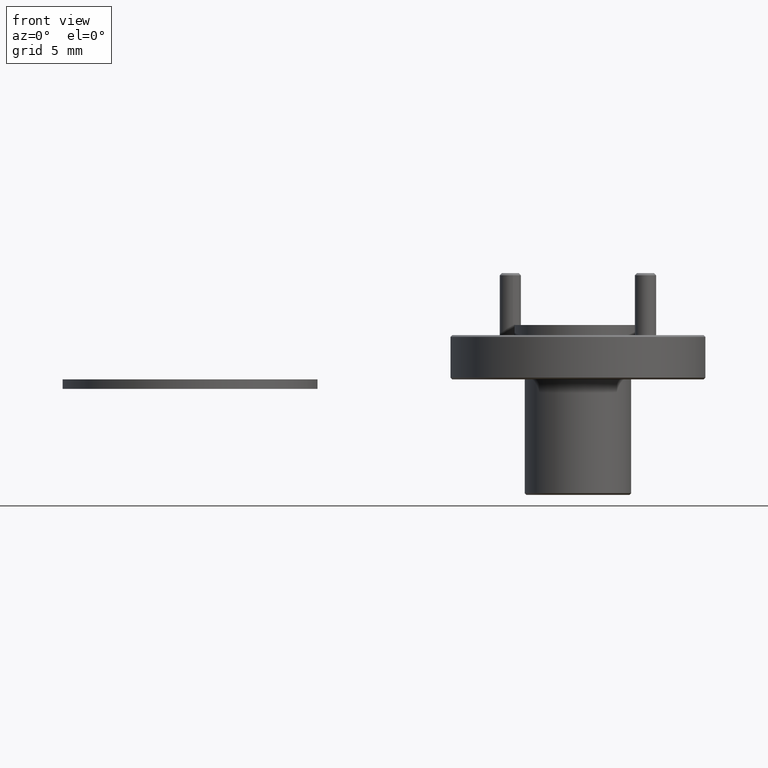
[diagram: clean part render]
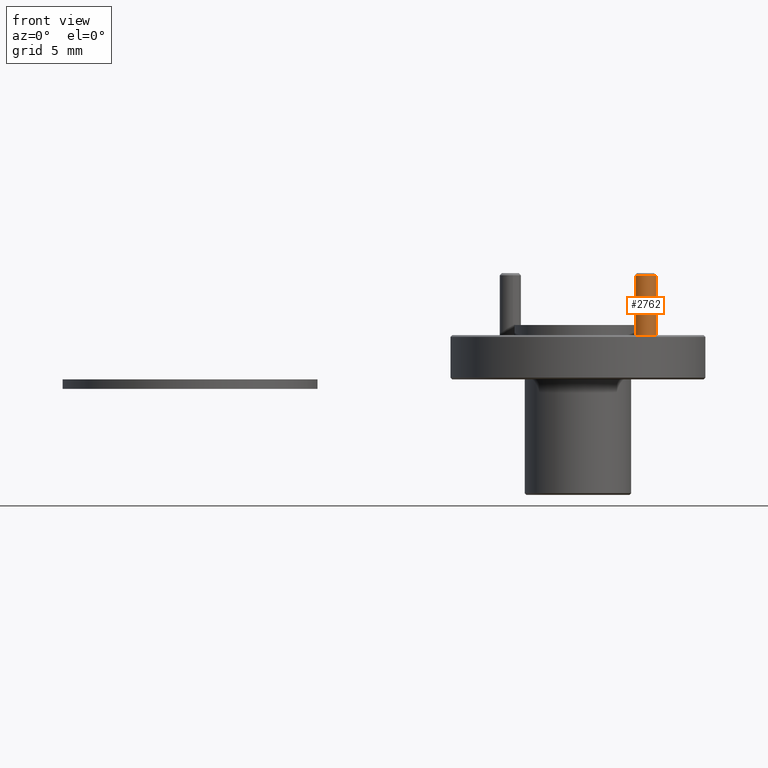
[diagram: same view with one face highlighted and labeled with its STEP entity id]
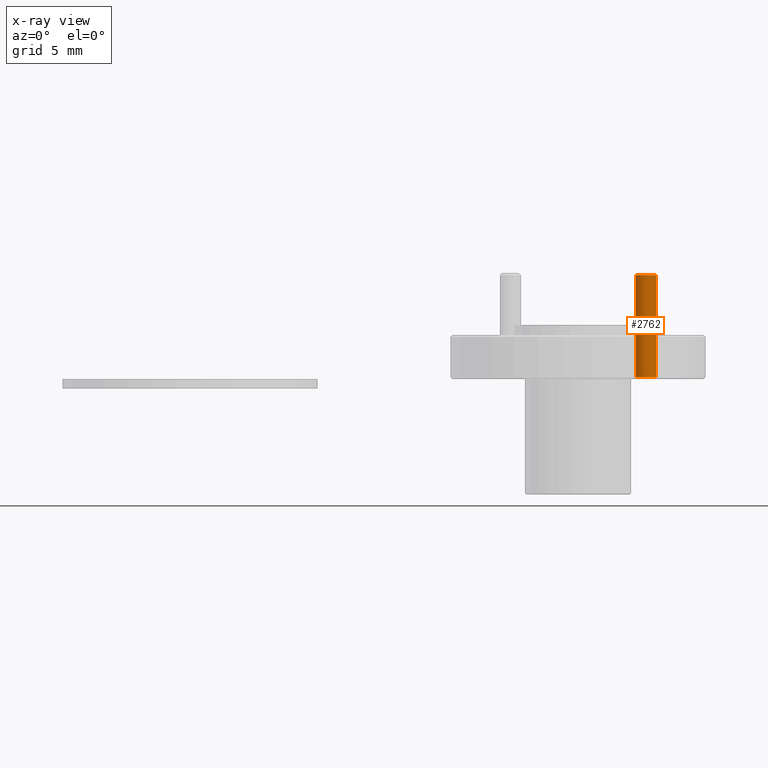
[diagram: x-ray of the same camera — body ghosted, the highlighted face saturated]
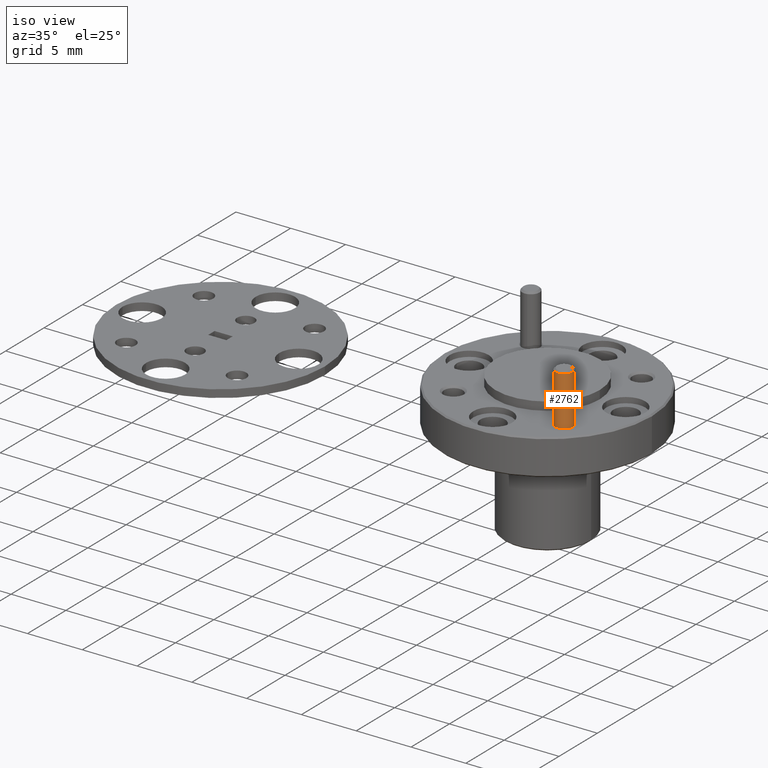
[diagram: same view with one face highlighted and labeled with its STEP entity id]
A machine part, front view. The second image highlights one B-rep face of the part: STEP entity #2762.
The next image is the same camera in x-ray: the body ghosted, the highlighted face saturated — about 0% of this face is hidden behind the body in this view.
A second angle (iso view) of the same face is appended — the face is thin or edge-on in the first view.
In plain terms, the highlighted cylindrical surface (edge-blend (fillet) strip) has radius 0.7938 mm, axis along (-0, -0, 1).
Its self-contained STEP definition (entity closure, byte-faithful):
#42 = DIRECTION ( 'NONE',  ( 3.334314145518470400E-030, 1.280441524869767400E-030, -1.000000000000000000 ) ) ;
#141 = ORIENTED_EDGE ( 'NONE', *, *, #2178, .T. ) ;
#164 = CYLINDRICAL_SURFACE ( 'NONE', #619, 0.03125000000000003500 ) ;
#306 = EDGE_CURVE ( 'NONE', #335, #1348, #384, .T. ) ;
#326 = VERTEX_POINT ( 'NONE', #2375 ) ;
#335 = VERTEX_POINT ( 'NONE', #2577 ) ;
#384 = LINE ( 'NONE', #2600, #1295 ) ;
#447 = EDGE_CURVE ( 'NONE', #2147, #326, #2046, .T. ) ;
#583 = CARTESIAN_POINT ( 'NONE',  ( -0.7259673814067050300, 1.009159099446192100, -0.4370940517253864600 ) ) ;
#619 = AXIS2_PLACEMENT_3D ( 'NONE', #1874, #2318, #2114 ) ;
#679 = ORIENTED_EDGE ( 'NONE', *, *, #447, .F. ) ;
#850 = CARTESIAN_POINT ( 'NONE',  ( -0.7259673814067054700, 1.009159099446191900, -0.4308440517253859200 ) ) ;
#1133 = EDGE_LOOP ( 'NONE', ( #679, #1626, #2389, #141 ) ) ;
#1216 = CARTESIAN_POINT ( 'NONE',  ( -0.6704528151205989600, 1.037871168860735800, -0.1308440517253863800 ) ) ;
#1295 = VECTOR ( 'NONE', #2842, 39.37007874015748100 ) ;
#1348 = VERTEX_POINT ( 'NONE', #1216 ) ;
#1389 = CARTESIAN_POINT ( 'NONE',  ( -0.6982100982636518800, 1.023515134153463800, -0.1308440517253863800 ) ) ;
#1466 = CARTESIAN_POINT ( 'NONE',  ( -0.6982100982636525500, 1.023515134153463400, -0.4308440517253859200 ) ) ;
#1577 = VECTOR ( 'NONE', #1698, 39.37007874015748100 ) ;
#1626 = ORIENTED_EDGE ( 'NONE', *, *, #2338, .T. ) ;
#1698 = DIRECTION ( 'NONE',  ( -3.334314145518470400E-030, -1.280441524869767400E-030, 1.000000000000000000 ) ) ;
#1741 = DIRECTION ( 'NONE',  ( 0.8882330605776904700, 0.4593931106327011100, 0.0000000000000000000 ) ) ;
#1830 = AXIS2_PLACEMENT_3D ( 'NONE', #1466, #1914, #1741 ) ;
#1855 = DIRECTION ( 'NONE',  ( 0.8882330605776904700, 0.4593931106327011100, 0.0000000000000000000 ) ) ;
#1874 = CARTESIAN_POINT ( 'NONE',  ( -0.6982100982636521000, 1.023515134153464100, -0.4370940517253864600 ) ) ;
#1914 = DIRECTION ( 'NONE',  ( -3.334314145518470400E-030, -1.280441524869767400E-030, 1.000000000000000000 ) ) ;
#2046 = LINE ( 'NONE', #583, #1577 ) ;
#2114 = DIRECTION ( 'NONE',  ( 0.8882330605776904700, 0.4593931106327011100, 0.0000000000000000000 ) ) ;
#2117 = CIRCLE ( 'NONE', #1830, 0.03125000000000003500 ) ;
#2147 = VERTEX_POINT ( 'NONE', #850 ) ;
#2178 = EDGE_CURVE ( 'NONE', #1348, #326, #2404, .T. ) ;
#2306 = AXIS2_PLACEMENT_3D ( 'NONE', #1389, #42, #1855 ) ;
#2318 = DIRECTION ( 'NONE',  ( -3.334314145518470400E-030, -1.280441524869767400E-030, 1.000000000000000000 ) ) ;
#2338 = EDGE_CURVE ( 'NONE', #2147, #335, #2117, .T. ) ;
#2375 = CARTESIAN_POINT ( 'NONE',  ( -0.7259673814067048000, 1.009159099446192300, -0.1308440517253863800 ) ) ;
#2389 = ORIENTED_EDGE ( 'NONE', *, *, #306, .T. ) ;
#2404 = CIRCLE ( 'NONE', #2306, 0.03125000000000003500 ) ;
#2577 = CARTESIAN_POINT ( 'NONE',  ( -0.6704528151205996200, 1.037871168860735400, -0.4308440517253859200 ) ) ;
#2600 = CARTESIAN_POINT ( 'NONE',  ( -0.6704528151205992900, 1.037871168860736000, -0.4370940517253864600 ) ) ;
#2762 = ADVANCED_FACE ( 'NONE', ( #2792 ), #164, .T. ) ;
#2792 = FACE_OUTER_BOUND ( 'NONE', #1133, .T. ) ;
#2842 = DIRECTION ( 'NONE',  ( -3.334314145518470400E-030, -1.280441524869767400E-030, 1.000000000000000000 ) ) ;